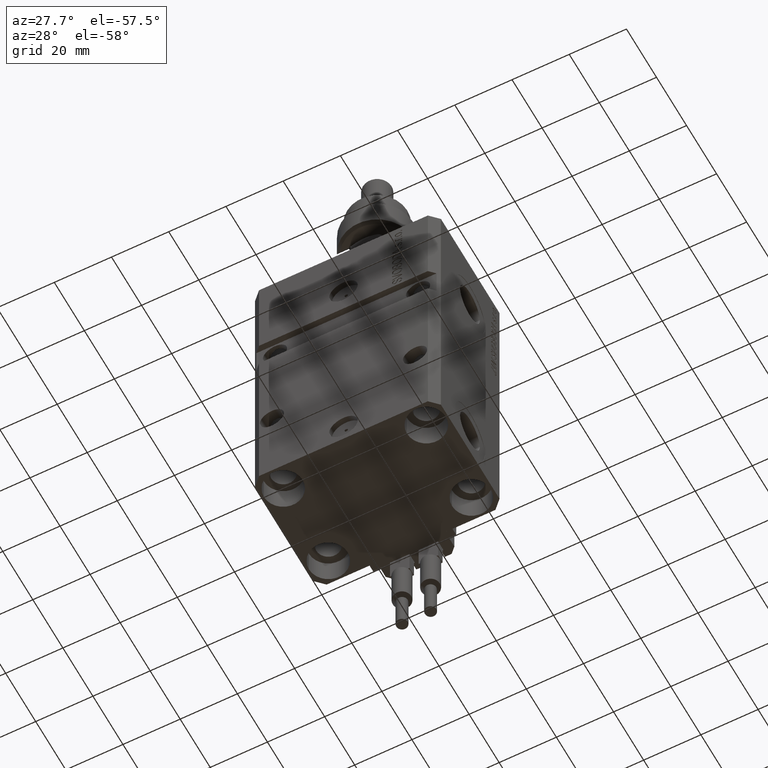
[diagram: clean part render]
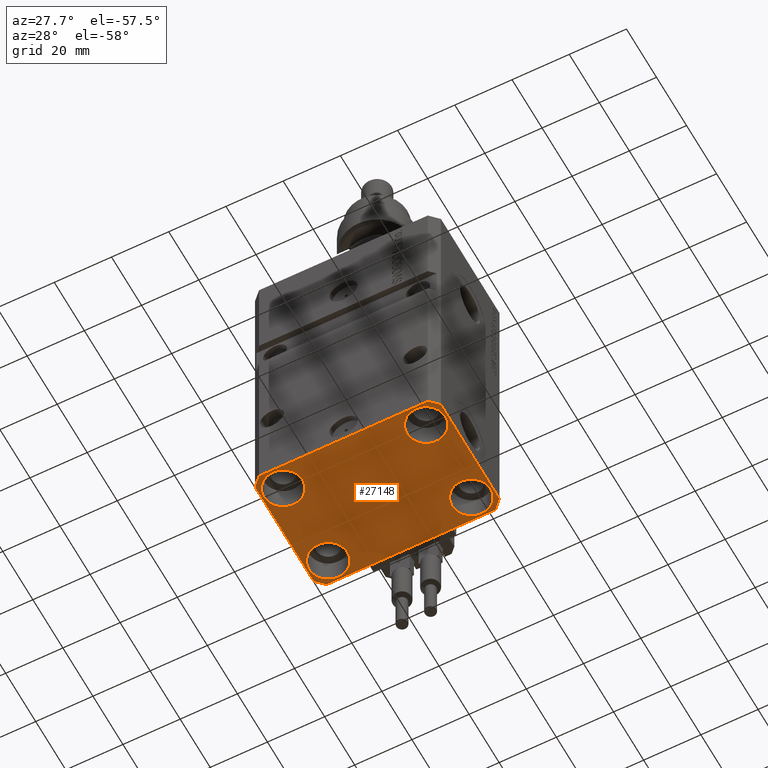
[diagram: same view with one face highlighted and labeled with its STEP entity id]
A machine part, auxiliary view. The second image highlights one B-rep face of the part: STEP entity #27148.
In plain terms, the highlighted planar face has unit normal (0, 0, 1).
Its self-contained STEP definition (entity closure, byte-faithful):
#155 = DIRECTION ( 'NONE',  ( 1.000000000000000000, 0.000000000000000000, 0.000000000000000000 ) ) ;
#256 = LINE ( 'NONE', #8794, #35497 ) ;
#918 = VERTEX_POINT ( 'NONE', #44152 ) ;
#1032 = CARTESIAN_POINT ( 'NONE',  ( -32.49999999999650413, 19.49999999999949907, -107.0000000000000000 ) ) ;
#1286 = DIRECTION ( 'NONE',  ( -0.000000000000000000, -0.000000000000000000, 1.000000000000000000 ) ) ;
#1785 = EDGE_CURVE ( 'NONE', #17090, #918, #9748, .T. ) ;
#2254 = ORIENTED_EDGE ( 'NONE', *, *, #22819, .T. ) ;
#2297 = DIRECTION ( 'NONE',  ( 1.334402673828349134E-14, 1.000000000000000000, 0.000000000000000000 ) ) ;
#2684 = CARTESIAN_POINT ( 'NONE',  ( -32.49999999999650413, 19.49999999999949907, -107.0000000000000000 ) ) ;
#3016 = ORIENTED_EDGE ( 'NONE', *, *, #20230, .T. ) ;
#3122 = CARTESIAN_POINT ( 'NONE',  ( 18.25000000002253842, -15.00000000000000000, -107.0000000000000000 ) ) ;
#3470 = EDGE_CURVE ( 'NONE', #11981, #30564, #30553, .T. ) ;
#3907 = CARTESIAN_POINT ( 'NONE',  ( -18.24999999997747224, 15.00000000000000000, -107.0000000000000000 ) ) ;
#3938 = ORIENTED_EDGE ( 'NONE', *, *, #1785, .T. ) ;
#4013 = AXIS2_PLACEMENT_3D ( 'NONE', #22351, #18461, #18206 ) ;
#4042 = VERTEX_POINT ( 'NONE', #48971 ) ;
#4224 = CIRCLE ( 'NONE', #35737, 6.749999999977465137 ) ;
#4537 = LINE ( 'NONE', #35195, #18684 ) ;
#4736 = VECTOR ( 'NONE', #19187, 1000.000000000000000 ) ;
#4828 = ORIENTED_EDGE ( 'NONE', *, *, #11805, .F. ) ;
#5173 = DIRECTION ( 'NONE',  ( -0.7071067811865352493, 0.7071067811865597852, 0.000000000000000000 ) ) ;
#5650 = EDGE_CURVE ( 'NONE', #34235, #50243, #33938, .T. ) ;
#5783 = VERTEX_POINT ( 'NONE', #6936 ) ;
#6384 = CARTESIAN_POINT ( 'NONE',  ( -29.49999999999650413, -22.49999999999949907, -107.0000000000000000 ) ) ;
#6936 = CARTESIAN_POINT ( 'NONE',  ( 31.74999999997746869, -15.00000000000000000, -107.0000000000000000 ) ) ;
#7374 = AXIS2_PLACEMENT_3D ( 'NONE', #36886, #1286, #13225 ) ;
#7418 = CARTESIAN_POINT ( 'NONE',  ( 31.74999999995845101, 15.00000000000000888, -107.0000000000000000 ) ) ;
#7445 = CARTESIAN_POINT ( 'NONE',  ( 25.00000000000000355, -15.00000000000000000, -107.0000000000000000 ) ) ;
#8067 = ORIENTED_EDGE ( 'NONE', *, *, #51134, .T. ) ;
#8794 = CARTESIAN_POINT ( 'NONE',  ( 32.49999999999702993, 19.49999999999945999, -107.0000000000000000 ) ) ;
#9245 = DIRECTION ( 'NONE',  ( -0.000000000000000000, -0.000000000000000000, 1.000000000000000000 ) ) ;
#9285 = EDGE_LOOP ( 'NONE', ( #38818, #3016 ) ) ;
#9492 = ORIENTED_EDGE ( 'NONE', *, *, #3470, .T. ) ;
#9748 = CIRCLE ( 'NONE', #21369, 6.750000000041541881 ) ;
#9862 = AXIS2_PLACEMENT_3D ( 'NONE', #28473, #9245, #36036 ) ;
#9937 = EDGE_LOOP ( 'NONE', ( #46922, #9492 ) ) ;
#10426 = FACE_BOUND ( 'NONE', #9285, .T. ) ;
#11804 = DIRECTION ( 'NONE',  ( 1.000000000000000000, 1.176083712526788232E-16, 0.000000000000000000 ) ) ;
#11805 = EDGE_CURVE ( 'NONE', #4042, #41103, #29515, .T. ) ;
#11910 = VERTEX_POINT ( 'NONE', #6384 ) ;
#11981 = VERTEX_POINT ( 'NONE', #7418 ) ;
#12034 = EDGE_CURVE ( 'NONE', #30564, #11981, #35241, .T. ) ;
#12985 = VECTOR ( 'NONE', #41149, 1000.000000000000114 ) ;
#13225 = DIRECTION ( 'NONE',  ( 1.000000000000000000, 0.000000000000000000, 0.000000000000000000 ) ) ;
#13884 = EDGE_CURVE ( 'NONE', #11910, #41179, #4537, .T. ) ;
#14571 = FACE_BOUND ( 'NONE', #29146, .T. ) ;
#14850 = EDGE_CURVE ( 'NONE', #41103, #22735, #30587, .T. ) ;
#16633 = CARTESIAN_POINT ( 'NONE',  ( -31.75000000002253842, 15.00000000000000000, -107.0000000000000000 ) ) ;
#17090 = VERTEX_POINT ( 'NONE', #40131 ) ;
#18125 = CIRCLE ( 'NONE', #9862, 6.750000000022533087 ) ;
#18206 = DIRECTION ( 'NONE',  ( 1.000000000000000000, 0.000000000000000000, 0.000000000000000000 ) ) ;
#18433 = EDGE_CURVE ( 'NONE', #44560, #4042, #256, .T. ) ;
#18461 = DIRECTION ( 'NONE',  ( -0.000000000000000000, -0.000000000000000000, 1.000000000000000000 ) ) ;
#18684 = VECTOR ( 'NONE', #11804, 1000.000000000000000 ) ;
#18723 = VECTOR ( 'NONE', #38645, 1000.000000000000114 ) ;
#19187 = DIRECTION ( 'NONE',  ( 0.7071067811865483499, 0.7071067811865466846, 0.000000000000000000 ) ) ;
#19999 = DIRECTION ( 'NONE',  ( 0.000000000000000000, -1.000000000000000000, 0.000000000000000000 ) ) ;
#20230 = EDGE_CURVE ( 'NONE', #50243, #34235, #18125, .T. ) ;
#20656 = CARTESIAN_POINT ( 'NONE',  ( 24.99999999999999645, 15.00000000000000888, -107.0000000000000000 ) ) ;
#20712 = CARTESIAN_POINT ( 'NONE',  ( 32.49999999999651124, -19.49999999999949196, -107.0000000000000000 ) ) ;
#21199 = ORIENTED_EDGE ( 'NONE', *, *, #18433, .F. ) ;
#21369 = AXIS2_PLACEMENT_3D ( 'NONE', #23616, #44657, #31684 ) ;
#21888 = VERTEX_POINT ( 'NONE', #36437 ) ;
#22351 = CARTESIAN_POINT ( 'NONE',  ( -25.00000000000000355, -15.00000000000000000, -107.0000000000000000 ) ) ;
#22735 = VERTEX_POINT ( 'NONE', #2684 ) ;
#22819 = EDGE_CURVE ( 'NONE', #918, #17090, #27207, .T. ) ;
#23284 = DIRECTION ( 'NONE',  ( -0.000000000000000000, -0.000000000000000000, 1.000000000000000000 ) ) ;
#23616 = CARTESIAN_POINT ( 'NONE',  ( -25.00000000000000355, -15.00000000000000000, -107.0000000000000000 ) ) ;
#23772 = VECTOR ( 'NONE', #19999, 1000.000000000000000 ) ;
#24026 = DIRECTION ( 'NONE',  ( -0.000000000000000000, -0.000000000000000000, 1.000000000000000000 ) ) ;
#24071 = EDGE_CURVE ( 'NONE', #49205, #5783, #43879, .T. ) ;
#24773 = CARTESIAN_POINT ( 'NONE',  ( -32.49999999999650413, -19.49999999999949907, -107.0000000000000000 ) ) ;
#25178 = DIRECTION ( 'NONE',  ( -0.000000000000000000, -0.000000000000000000, 1.000000000000000000 ) ) ;
#25273 = LINE ( 'NONE', #24773, #12985 ) ;
#25619 = CARTESIAN_POINT ( 'NONE',  ( 29.49999999999707967, 22.49999999999951328, -107.0000000000000000 ) ) ;
#27148 = ADVANCED_FACE ( 'NONE', ( #30691, #14571, #33834, #10426, #45795 ), #49410, .F. ) ;
#27207 = CIRCLE ( 'NONE', #4013, 6.750000000041541881 ) ;
#27712 = CARTESIAN_POINT ( 'NONE',  ( -29.49999999999650413, 22.49999999999949907, -107.0000000000000000 ) ) ;
#28015 = CARTESIAN_POINT ( 'NONE',  ( 32.49999999999702993, 19.49999999999945999, -107.0000000000000000 ) ) ;
#28473 = CARTESIAN_POINT ( 'NONE',  ( -25.00000000000000355, 15.00000000000000000, -107.0000000000000000 ) ) ;
#28569 = CARTESIAN_POINT ( 'NONE',  ( 24.99999999999999645, 15.00000000000000888, -107.0000000000000000 ) ) ;
#28628 = CARTESIAN_POINT ( 'NONE',  ( -29.49999999999650413, 22.49999999999949907, -107.0000000000000000 ) ) ;
#29052 = DIRECTION ( 'NONE',  ( -0.000000000000000000, -0.000000000000000000, 1.000000000000000000 ) ) ;
#29083 = DIRECTION ( 'NONE',  ( 1.000000000000000000, 0.000000000000000000, 0.000000000000000000 ) ) ;
#29146 = EDGE_LOOP ( 'NONE', ( #39804, #8067 ) ) ;
#29515 = LINE ( 'NONE', #25619, #47659 ) ;
#29673 = CARTESIAN_POINT ( 'NONE',  ( 0.000000000000000000, 0.000000000000000000, -107.0000000000000000 ) ) ;
#29746 = AXIS2_PLACEMENT_3D ( 'NONE', #28569, #25178, #29083 ) ;
#29833 = CARTESIAN_POINT ( 'NONE',  ( -25.00000000000000355, 15.00000000000000000, -107.0000000000000000 ) ) ;
#30080 = DIRECTION ( 'NONE',  ( 1.000000000000000000, 0.000000000000000000, 0.000000000000000000 ) ) ;
#30428 = DIRECTION ( 'NONE',  ( 1.000000000000000000, 0.000000000000000000, -0.000000000000000000 ) ) ;
#30553 = CIRCLE ( 'NONE', #29746, 6.749999999958452790 ) ;
#30564 = VERTEX_POINT ( 'NONE', #47911 ) ;
#30587 = LINE ( 'NONE', #27712, #18723 ) ;
#30691 = FACE_BOUND ( 'NONE', #39033, .T. ) ;
#31684 = DIRECTION ( 'NONE',  ( 1.000000000000000000, 0.000000000000000000, 0.000000000000000000 ) ) ;
#32793 = CARTESIAN_POINT ( 'NONE',  ( 29.49999999999650413, -22.49999999999949196, -107.0000000000000000 ) ) ;
#33428 = ORIENTED_EDGE ( 'NONE', *, *, #39654, .F. ) ;
#33708 = ORIENTED_EDGE ( 'NONE', *, *, #38881, .F. ) ;
#33834 = FACE_BOUND ( 'NONE', #9937, .T. ) ;
#33938 = CIRCLE ( 'NONE', #40632, 6.750000000022533087 ) ;
#34235 = VERTEX_POINT ( 'NONE', #16633 ) ;
#35195 = CARTESIAN_POINT ( 'NONE',  ( -29.49999999999650413, -22.49999999999949907, -107.0000000000000000 ) ) ;
#35241 = CIRCLE ( 'NONE', #42700, 6.749999999958452790 ) ;
#35292 = LINE ( 'NONE', #43351, #4736 ) ;
#35497 = VECTOR ( 'NONE', #5173, 1000.000000000000000 ) ;
#35725 = AXIS2_PLACEMENT_3D ( 'NONE', #29673, #49675, #30428 ) ;
#35737 = AXIS2_PLACEMENT_3D ( 'NONE', #7445, #23284, #43556 ) ;
#36036 = DIRECTION ( 'NONE',  ( 1.000000000000000000, 0.000000000000000000, 0.000000000000000000 ) ) ;
#36437 = CARTESIAN_POINT ( 'NONE',  ( -32.49999999999650413, -19.49999999999949907, -107.0000000000000000 ) ) ;
#36886 = CARTESIAN_POINT ( 'NONE',  ( 25.00000000000000355, -15.00000000000000000, -107.0000000000000000 ) ) ;
#37067 = VECTOR ( 'NONE', #2297, 1000.000000000000000 ) ;
#37595 = DIRECTION ( 'NONE',  ( -1.000000000000000000, -2.352167425053553784E-16, 0.000000000000000000 ) ) ;
#38645 = DIRECTION ( 'NONE',  ( -0.7071067811865474617, -0.7071067811865474617, 0.000000000000000000 ) ) ;
#38818 = ORIENTED_EDGE ( 'NONE', *, *, #5650, .T. ) ;
#38881 = EDGE_CURVE ( 'NONE', #41179, #49637, #35292, .T. ) ;
#39033 = EDGE_LOOP ( 'NONE', ( #2254, #3938 ) ) ;
#39342 = EDGE_CURVE ( 'NONE', #21888, #11910, #25273, .T. ) ;
#39386 = ORIENTED_EDGE ( 'NONE', *, *, #13884, .F. ) ;
#39593 = EDGE_CURVE ( 'NONE', #22735, #21888, #40019, .T. ) ;
#39654 = EDGE_CURVE ( 'NONE', #49637, #44560, #49315, .T. ) ;
#39804 = ORIENTED_EDGE ( 'NONE', *, *, #24071, .T. ) ;
#40019 = LINE ( 'NONE', #1032, #23772 ) ;
#40131 = CARTESIAN_POINT ( 'NONE',  ( -18.24999999995845812, -15.00000000000000000, -107.0000000000000000 ) ) ;
#40632 = AXIS2_PLACEMENT_3D ( 'NONE', #29833, #29052, #30080 ) ;
#41055 = EDGE_LOOP ( 'NONE', ( #4828, #21199, #33428, #33708, #39386, #41744, #48495, #46415 ) ) ;
#41103 = VERTEX_POINT ( 'NONE', #28628 ) ;
#41149 = DIRECTION ( 'NONE',  ( 0.7071067811865474617, -0.7071067811865474617, 0.000000000000000000 ) ) ;
#41179 = VERTEX_POINT ( 'NONE', #32793 ) ;
#41744 = ORIENTED_EDGE ( 'NONE', *, *, #39342, .F. ) ;
#42700 = AXIS2_PLACEMENT_3D ( 'NONE', #20656, #24026, #155 ) ;
#43351 = CARTESIAN_POINT ( 'NONE',  ( 29.49999999999650413, -22.49999999999949196, -107.0000000000000000 ) ) ;
#43556 = DIRECTION ( 'NONE',  ( 1.000000000000000000, 0.000000000000000000, 0.000000000000000000 ) ) ;
#43879 = CIRCLE ( 'NONE', #7374, 6.749999999977465137 ) ;
#44152 = CARTESIAN_POINT ( 'NONE',  ( -31.75000000004154899, -15.00000000000000000, -107.0000000000000000 ) ) ;
#44560 = VERTEX_POINT ( 'NONE', #28015 ) ;
#44657 = DIRECTION ( 'NONE',  ( -0.000000000000000000, -0.000000000000000000, 1.000000000000000000 ) ) ;
#45795 = FACE_OUTER_BOUND ( 'NONE', #41055, .T. ) ;
#46415 = ORIENTED_EDGE ( 'NONE', *, *, #14850, .F. ) ;
#46922 = ORIENTED_EDGE ( 'NONE', *, *, #12034, .T. ) ;
#47659 = VECTOR ( 'NONE', #37595, 1000.000000000000000 ) ;
#47911 = CARTESIAN_POINT ( 'NONE',  ( 18.25000000004154543, 15.00000000000000888, -107.0000000000000000 ) ) ;
#48495 = ORIENTED_EDGE ( 'NONE', *, *, #39593, .F. ) ;
#48971 = CARTESIAN_POINT ( 'NONE',  ( 29.49999999999707967, 22.49999999999951328, -107.0000000000000000 ) ) ;
#49065 = CARTESIAN_POINT ( 'NONE',  ( 32.49999999999651124, -19.49999999999949196, -107.0000000000000000 ) ) ;
#49205 = VERTEX_POINT ( 'NONE', #3122 ) ;
#49315 = LINE ( 'NONE', #49065, #37067 ) ;
#49410 = PLANE ( 'NONE',  #35725 ) ;
#49637 = VERTEX_POINT ( 'NONE', #20712 ) ;
#49675 = DIRECTION ( 'NONE',  ( 0.000000000000000000, 0.000000000000000000, 1.000000000000000000 ) ) ;
#50243 = VERTEX_POINT ( 'NONE', #3907 ) ;
#51134 = EDGE_CURVE ( 'NONE', #5783, #49205, #4224, .T. ) ;